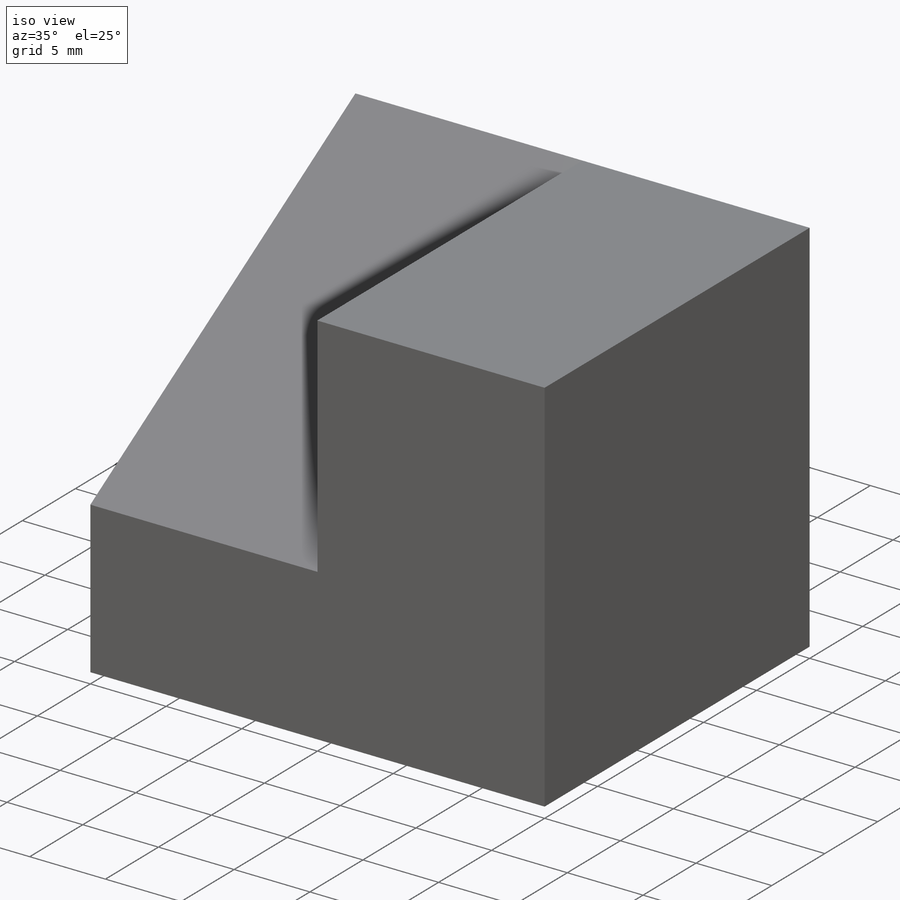
[diagram: iso view]
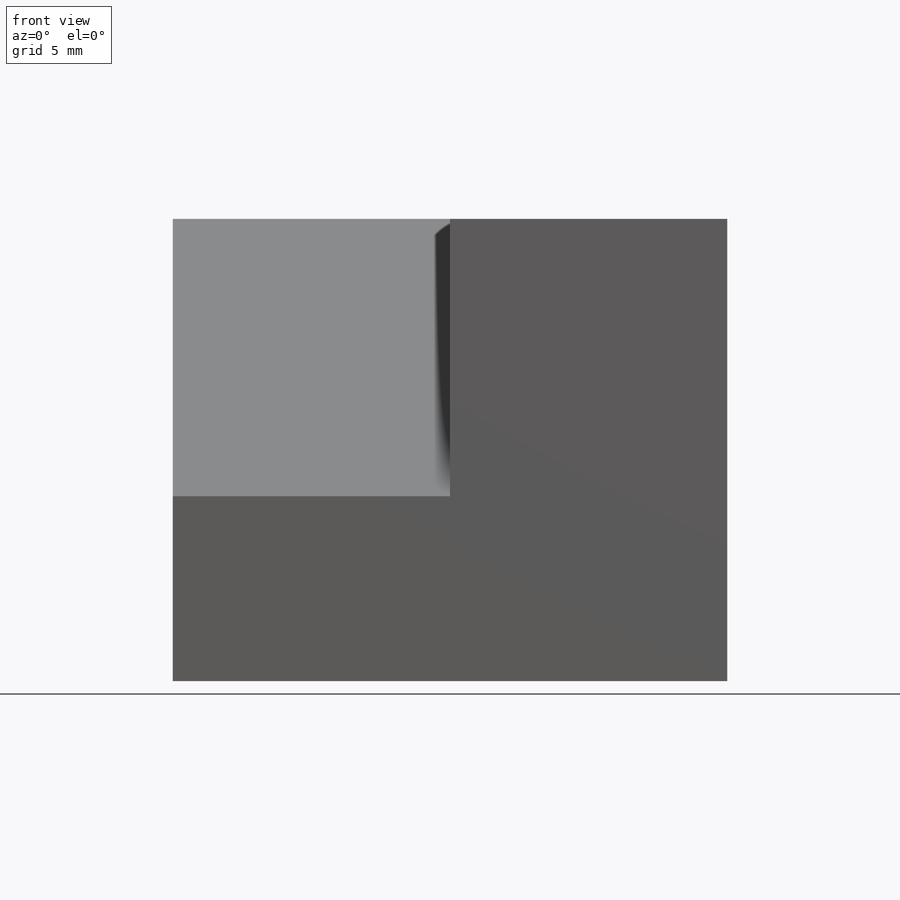
[diagram: front view]
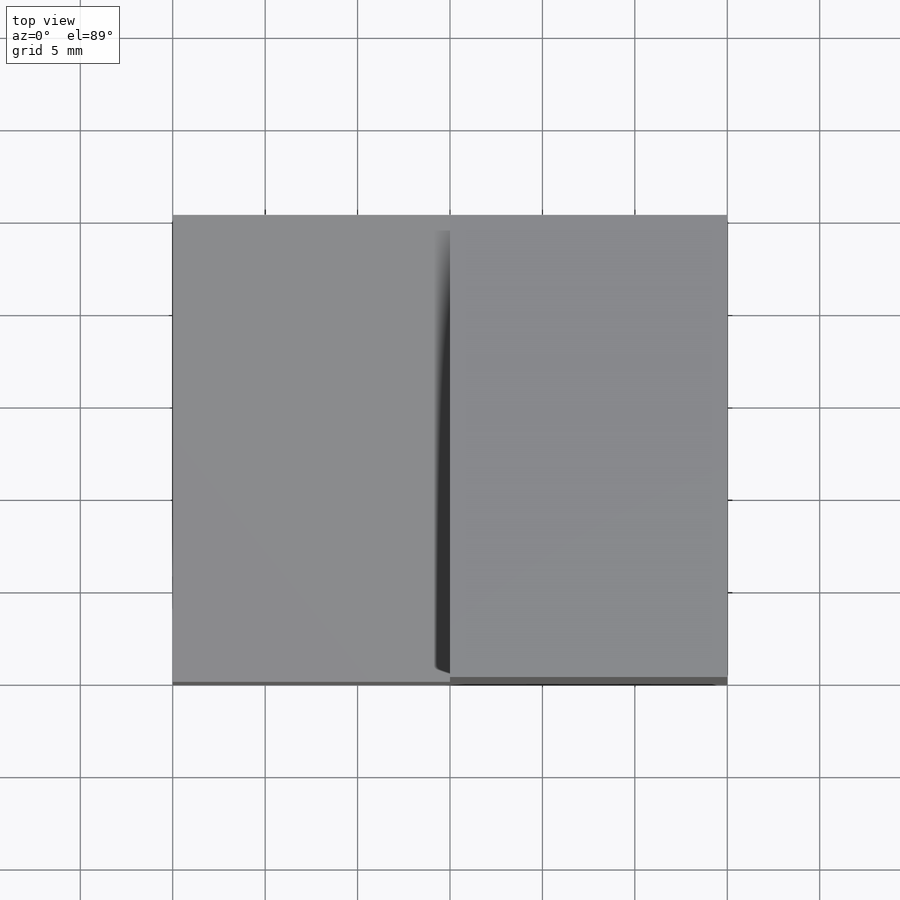
[diagram: top view]
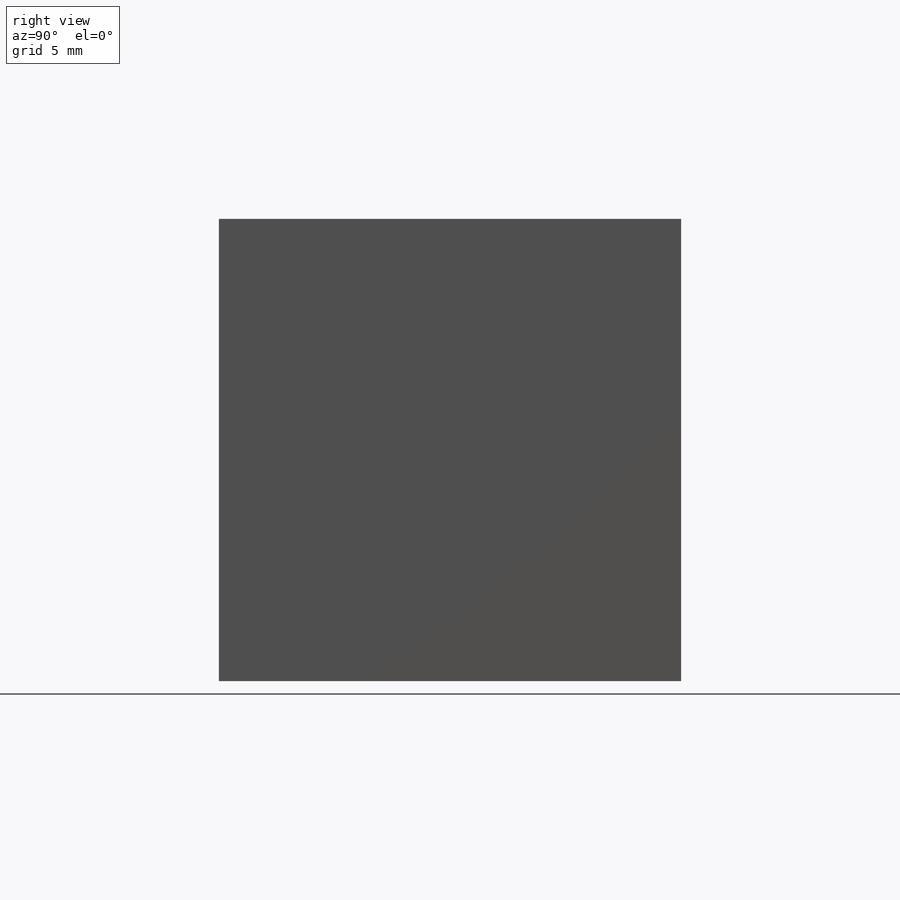
[diagram: right view]
SOLIDWORKS PART (.sldprt)
format: sldprt  version: not decoded by parser v0  size: 133,120 bytes
history: native  units: mm
features: sketch x3, extrude x2, material x1, cut_extrude x1 (+13 scaffold rows collapsed)
feature tree (20):
  scaffold x13  (default folders/planes/origin — collapsed)
  material  "Material <not specified>"
  sketch  "Sketch1"  dims[D1=15.0mm D2=25.0mm D3=30.0mm D4=10.0mm D5=15.0mm]
  extrude  "Boss-Extrude1"  Depth=25mm
  sketch  "Sketch2"
  extrude  "Boss-Extrude2"  Depth=15mm
  sketch  "Sketch3"  dims[D1=15.0mm D2=15.0mm]
  cut_extrude  "Cut-Extrude1"  Depth=15mm
decode coverage: 5 of 6 modeling features carry decoded parameters
note: suppression state not decoded; provenance and decode notes live in map.json
